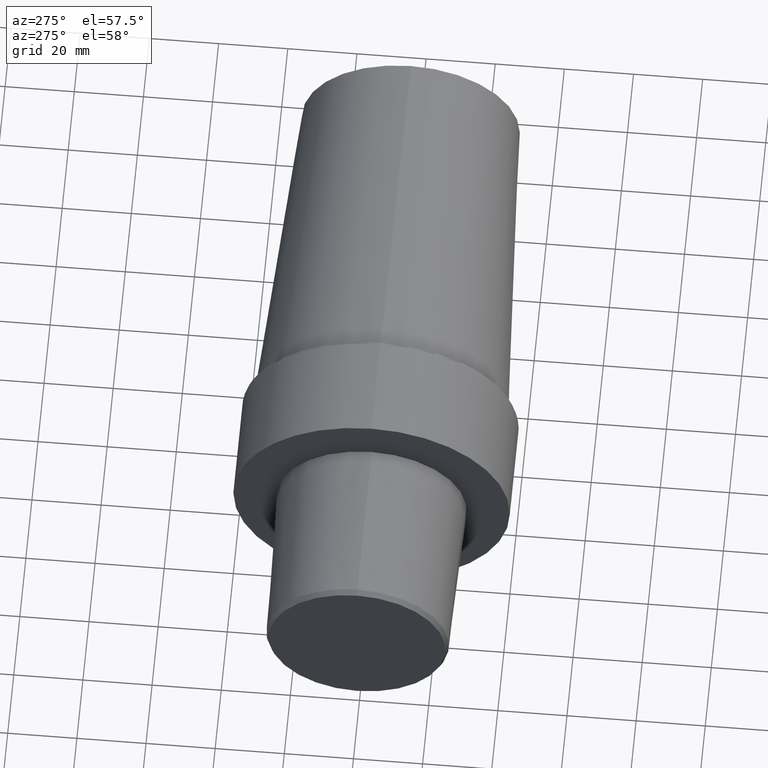
[diagram: clean part render]
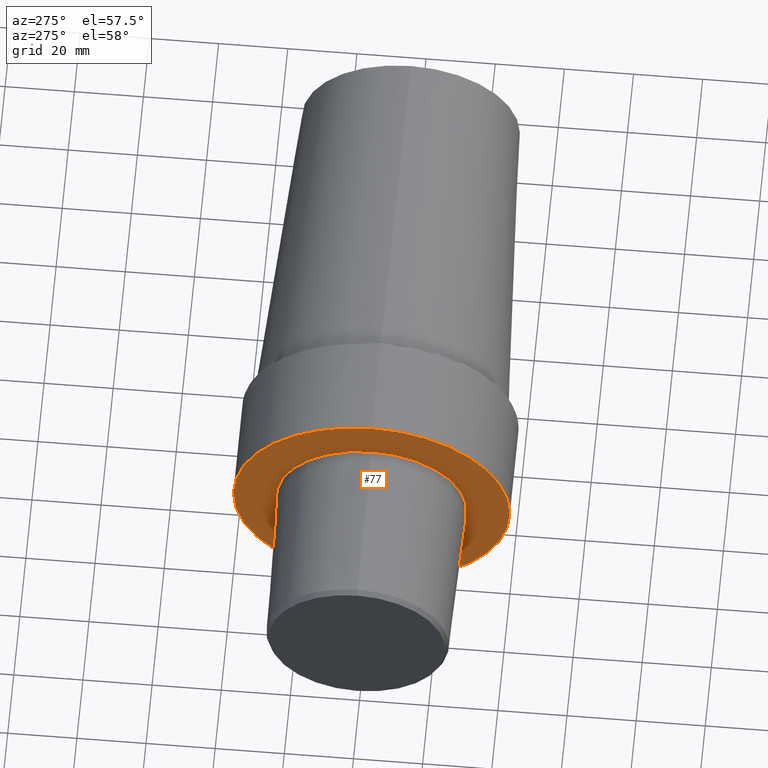
[diagram: same view with one face highlighted and labeled with its STEP entity id]
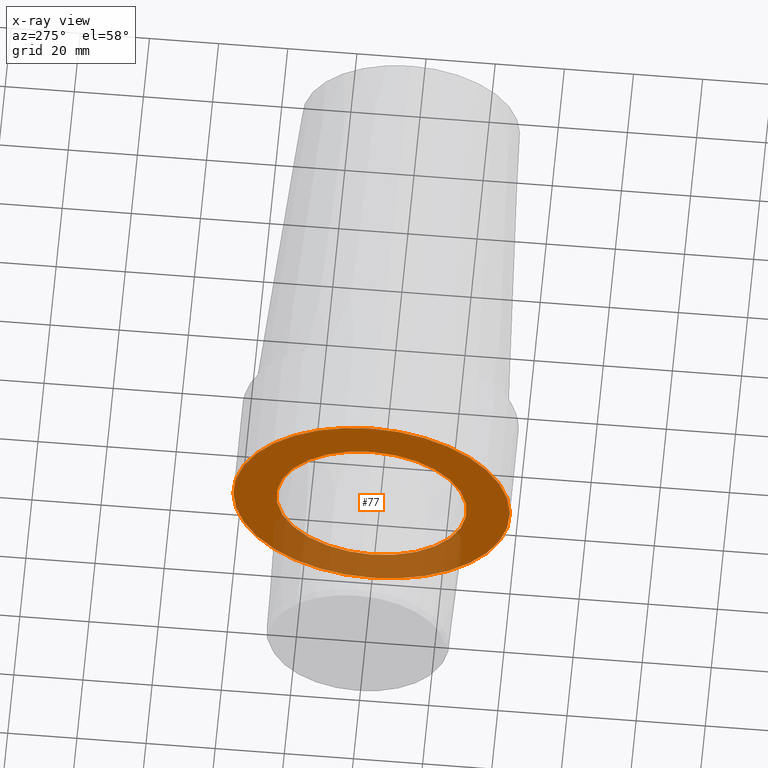
[diagram: x-ray of the same camera — body ghosted, the highlighted face saturated]
A machine part, auxiliary view. The second image highlights one B-rep face of the part: STEP entity #77.
The next image is the same camera in x-ray: the body ghosted, the highlighted face saturated — about 30% of this face is hidden behind the body in this view.
In plain terms, the highlighted planar face has unit normal (1, 0, 0).
Its self-contained STEP definition (entity closure, byte-faithful):
#34 = DIRECTION ( 'NONE',  ( 0.000000000000000000, 1.000000000000000000, 0.000000000000000000 ) ) ;
#37 = EDGE_CURVE ( 'NONE', #297, #265, #260, .T. ) ;
#45 = VERTEX_POINT ( 'NONE', #443 ) ;
#59 = EDGE_CURVE ( 'NONE', #265, #297, #510, .T. ) ;
#65 = DIRECTION ( 'NONE',  ( -1.000000000000000000, 0.000000000000000000, 0.000000000000000000 ) ) ;
#71 = DIRECTION ( 'NONE',  ( 0.000000000000000000, 0.000000000000000000, 1.000000000000000000 ) ) ;
#77 = ADVANCED_FACE ( 'NONE', ( #196, #517 ), #114, .F. ) ;
#93 = ORIENTED_EDGE ( 'NONE', *, *, #59, .T. ) ;
#101 = CARTESIAN_POINT ( 'NONE',  ( 2.691416640612785863E-09, 0.000000000000000000, 0.000000000000000000 ) ) ;
#108 = DIRECTION ( 'NONE',  ( 0.000000000000000000, 0.000000000000000000, 1.000000000000000000 ) ) ;
#114 = PLANE ( 'NONE',  #225 ) ;
#140 = AXIS2_PLACEMENT_3D ( 'NONE', #410, #215, #369 ) ;
#142 = DIRECTION ( 'NONE',  ( -1.000000000000000000, 0.000000000000000000, 0.000000000000000000 ) ) ;
#148 = CARTESIAN_POINT ( 'NONE',  ( 2.691416640612785863E-09, 0.000000000000000000, 0.000000000000000000 ) ) ;
#155 = DIRECTION ( 'NONE',  ( 1.000000000000000000, 0.000000000000000000, 0.000000000000000000 ) ) ;
#166 = AXIS2_PLACEMENT_3D ( 'NONE', #148, #435, #71 ) ;
#178 = EDGE_LOOP ( 'NONE', ( #384, #259 ) ) ;
#196 = FACE_BOUND ( 'NONE', #178, .T. ) ;
#215 = DIRECTION ( 'NONE',  ( -1.000000000000000000, 0.000000000000000000, 0.000000000000000000 ) ) ;
#225 = AXIS2_PLACEMENT_3D ( 'NONE', #405, #155, #34 ) ;
#241 = CARTESIAN_POINT ( 'NONE',  ( 2.691416640612785863E-09, 0.000000000000000000, 0.000000000000000000 ) ) ;
#259 = ORIENTED_EDGE ( 'NONE', *, *, #277, .F. ) ;
#260 = CIRCLE ( 'NONE', #166, 39.99249996386929951 ) ;
#261 = EDGE_CURVE ( 'NONE', #45, #263, #375, .T. ) ;
#263 = VERTEX_POINT ( 'NONE', #529 ) ;
#265 = VERTEX_POINT ( 'NONE', #335 ) ;
#277 = EDGE_CURVE ( 'NONE', #263, #45, #439, .T. ) ;
#297 = VERTEX_POINT ( 'NONE', #383 ) ;
#335 = CARTESIAN_POINT ( 'NONE',  ( 2.691416640612785863E-09, 4.897668707065322260E-15, -39.99249996386929951 ) ) ;
#350 = DIRECTION ( 'NONE',  ( 0.000000000000000000, 0.000000000000000000, 1.000000000000000000 ) ) ;
#369 = DIRECTION ( 'NONE',  ( 0.000000000000000000, 0.000000000000000000, 1.000000000000000000 ) ) ;
#375 = CIRCLE ( 'NONE', #140, 27.52650806658465399 ) ;
#383 = CARTESIAN_POINT ( 'NONE',  ( 2.691416640612785863E-09, 0.000000000000000000, 39.99249996386929951 ) ) ;
#384 = ORIENTED_EDGE ( 'NONE', *, *, #261, .F. ) ;
#405 = CARTESIAN_POINT ( 'NONE',  ( 2.691419645645579073E-09, 39.99249996386929951, 0.000000000000000000 ) ) ;
#410 = CARTESIAN_POINT ( 'NONE',  ( 2.691416640612785863E-09, 0.000000000000000000, 0.000000000000000000 ) ) ;
#435 = DIRECTION ( 'NONE',  ( -1.000000000000000000, 0.000000000000000000, 0.000000000000000000 ) ) ;
#439 = CIRCLE ( 'NONE', #485, 27.52650806658465399 ) ;
#443 = CARTESIAN_POINT ( 'NONE',  ( 2.691416640612785863E-09, 0.000000000000000000, 27.52650806658465399 ) ) ;
#485 = AXIS2_PLACEMENT_3D ( 'NONE', #101, #142, #350 ) ;
#499 = ORIENTED_EDGE ( 'NONE', *, *, #37, .T. ) ;
#510 = CIRCLE ( 'NONE', #530, 39.99249996386929951 ) ;
#517 = FACE_OUTER_BOUND ( 'NONE', #535, .T. ) ;
#529 = CARTESIAN_POINT ( 'NONE',  ( 2.691416640612785863E-09, 3.371024999544667893E-15, -27.52650806658465399 ) ) ;
#530 = AXIS2_PLACEMENT_3D ( 'NONE', #241, #65, #108 ) ;
#535 = EDGE_LOOP ( 'NONE', ( #499, #93 ) ) ;